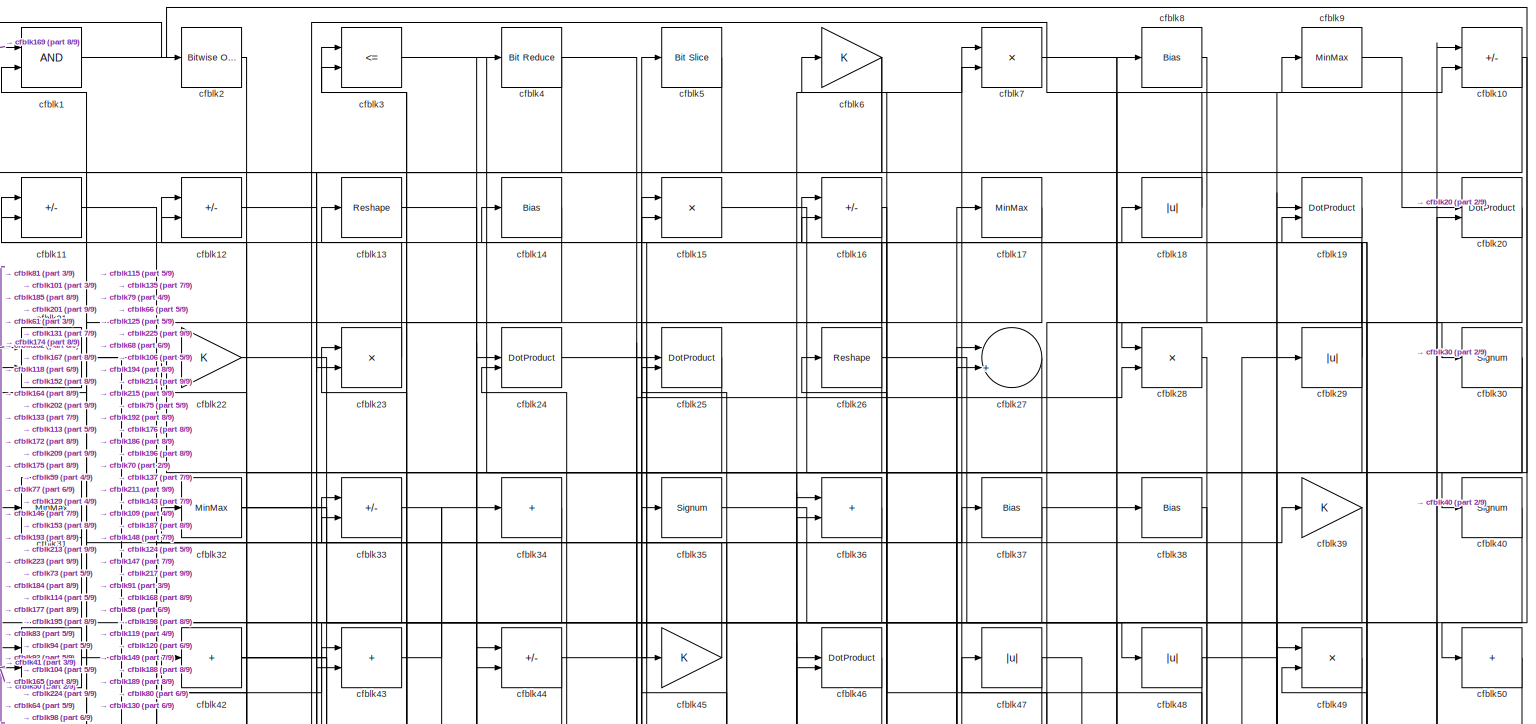
[diagram: root canvas - part 1/9, full width, top band]
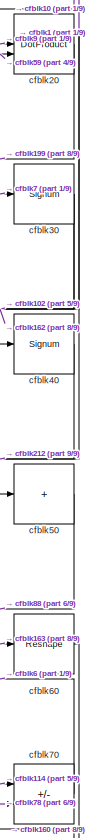
[diagram: root canvas - part 2/9, top right region]
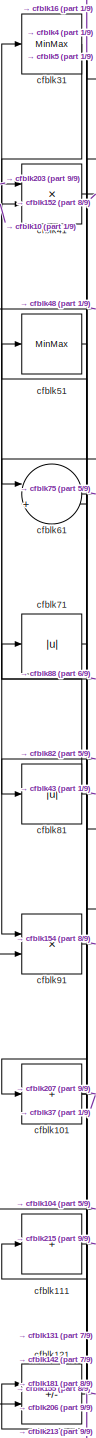
[diagram: root canvas - part 3/9, middle left region]
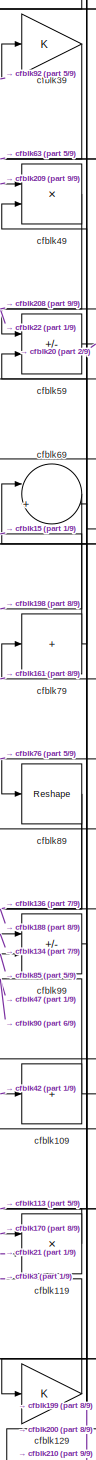
[diagram: root canvas - part 4/9, middle right region]
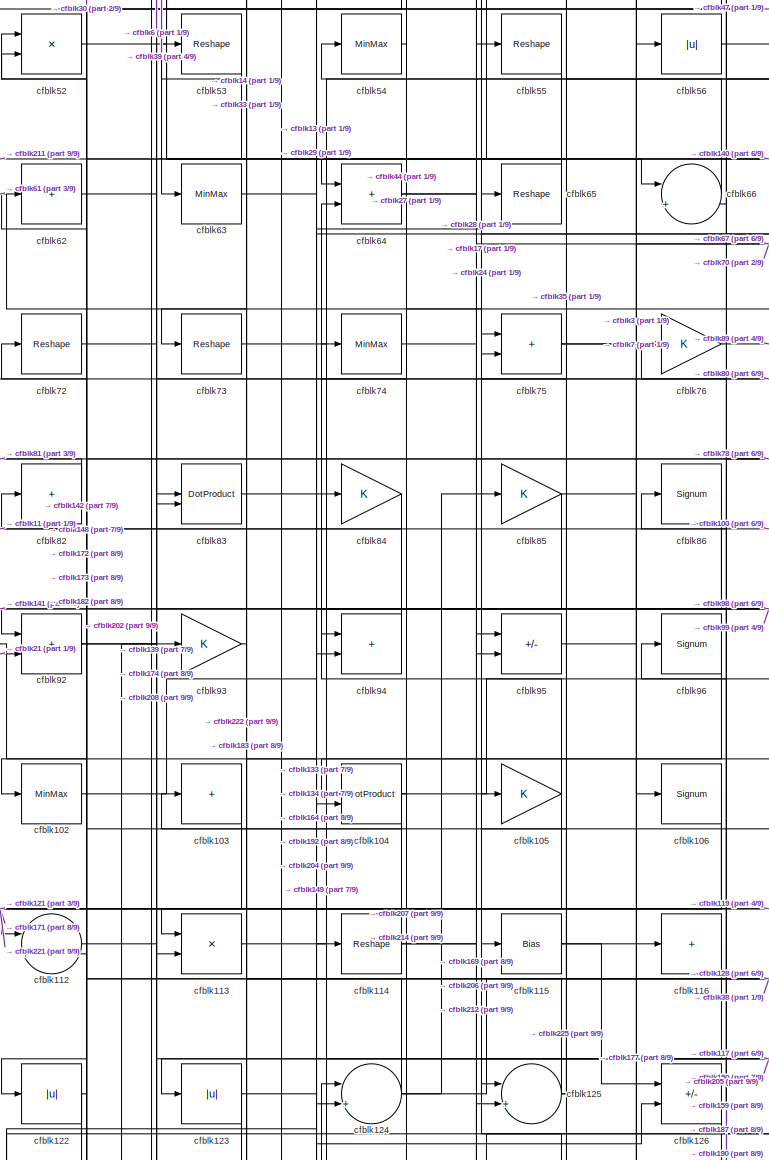
[diagram: root canvas - part 5/9, central region]
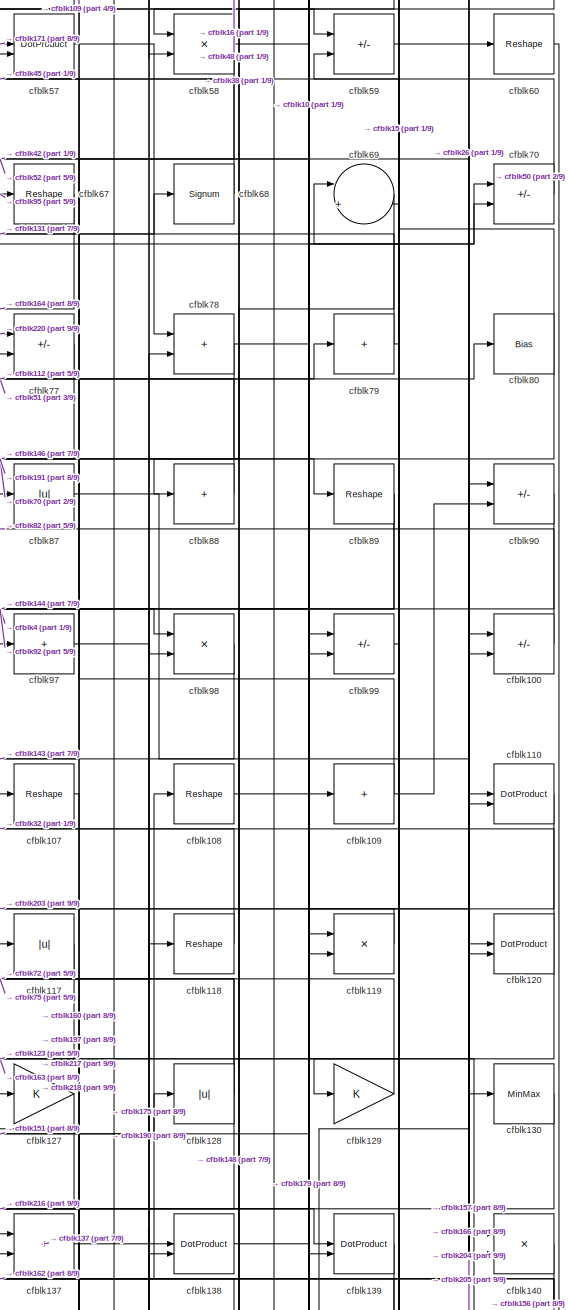
[diagram: root canvas - part 6/9, middle right region]
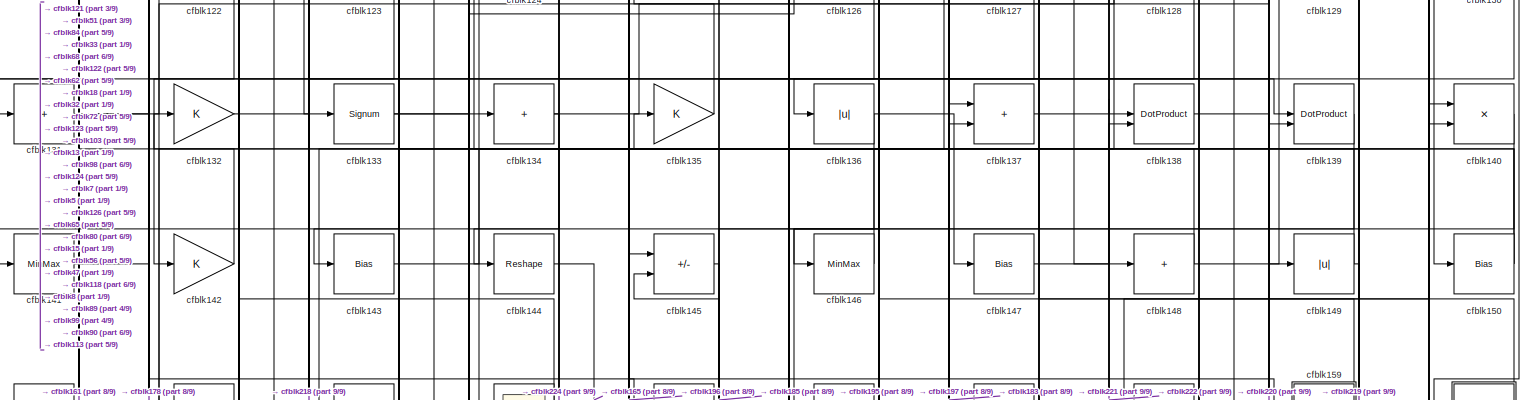
[diagram: root canvas - part 7/9, full width, middle band]
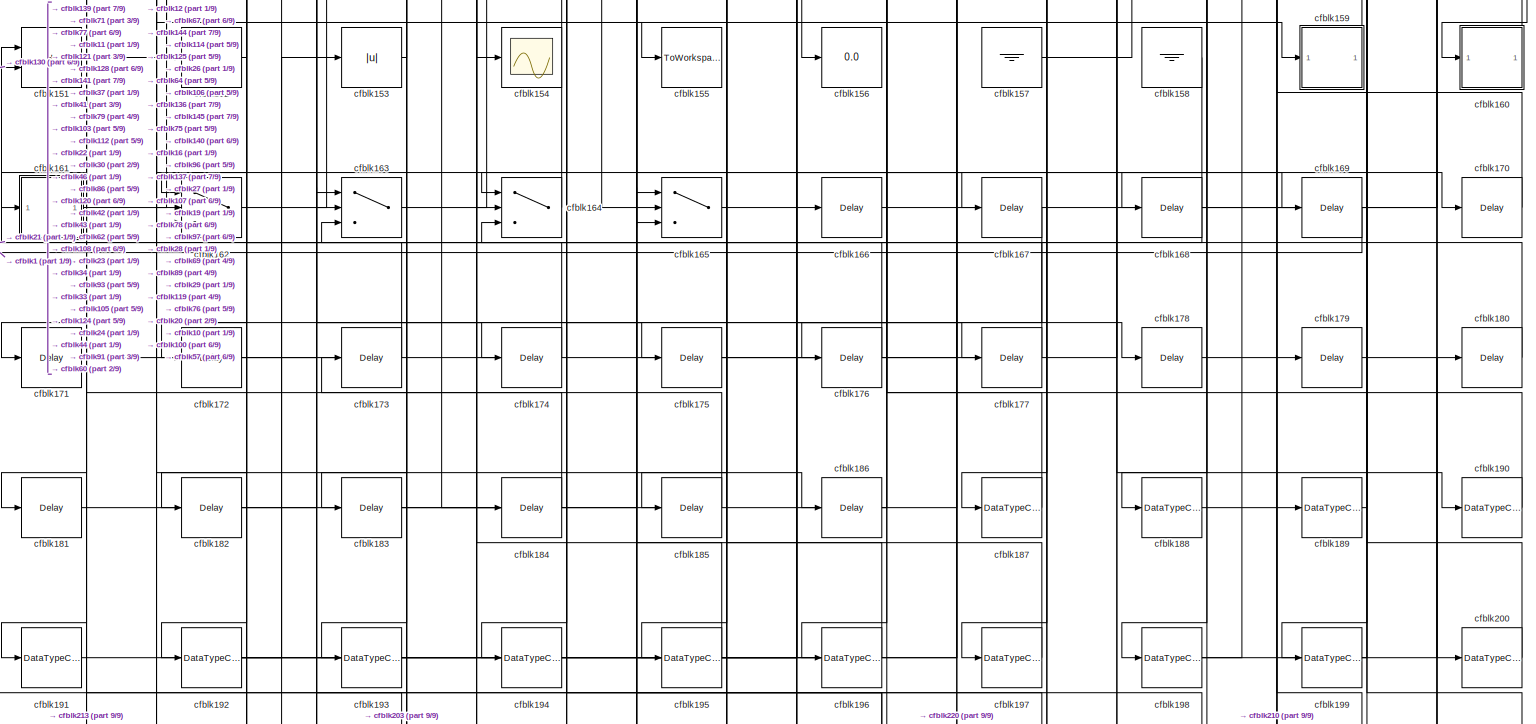
[diagram: root canvas - part 8/9, full width, bottom band]
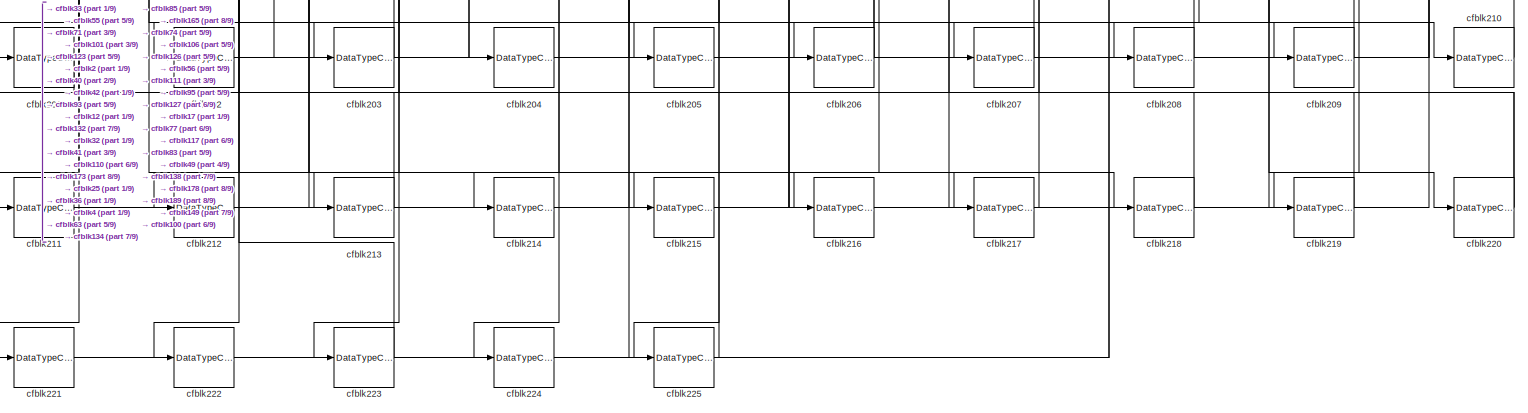
[diagram: root canvas - part 9/9, full width, bottom band]
MODEL slx_7e7585e5e360
KIND model
CONFIG AbsTol = auto
CONFIG EnableMultiTasking = off
CONFIG FixedStep = auto
CONFIG MaxStep = auto
CONFIG MinStep = auto
CONFIG RelTol = 1e-3
CONFIG SampleTimeConstraint = Unconstrained
CONFIG SolverName = VariableStepAuto
CONFIG StartTime = 0.0
CONFIG StopTime = 10.0
BLOCK [Logic] cfblk1
  AllPortsSameDT = off
  OutDataTypeStr = boolean
BLOCK [Sum] cfblk10
  IconShape = rectangular
  Inputs = +-
BLOCK [Sum] cfblk100
  IconShape = rectangular
  Inputs = +-
BLOCK [Sum] cfblk101
  IconShape = rectangular
  Inputs = +
BLOCK [MinMax] cfblk102
BLOCK [Sum] cfblk103
  IconShape = rectangular
  Inputs = +
BLOCK [DotProduct] cfblk104
  OutDataTypeStr = Inherit: Inherit via internal rule
BLOCK [Gain] cfblk105
BLOCK [Signum] cfblk106
BLOCK [Reshape] cfblk107
BLOCK [Reshape] cfblk108
BLOCK [Sum] cfblk109
  IconShape = rectangular
  Inputs = +
BLOCK [Sum] cfblk11
  IconShape = rectangular
  Inputs = +-
BLOCK [DotProduct] cfblk110
  OutDataTypeStr = Inherit: Inherit via internal rule
BLOCK [Sum] cfblk111
  IconShape = rectangular
  Inputs = +
BLOCK [Sum] cfblk112
  Inputs = |++
BLOCK [Product] cfblk113
  Inputs = */
  RndMeth = Zero
  SaturateOnIntegerOverflow = on
BLOCK [Reshape] cfblk114
BLOCK [Bias] cfblk115
  Bias = 0.0
  SaturateOnIntegerOverflow = off
BLOCK [Sum] cfblk116
  IconShape = rectangular
  Inputs = +
BLOCK [Abs] cfblk117
  SaturateOnIntegerOverflow = off
BLOCK [Reshape] cfblk118
BLOCK [Product] cfblk119
  Inputs = */
  RndMeth = Zero
  SaturateOnIntegerOverflow = on
BLOCK [Sum] cfblk12
  IconShape = rectangular
  Inputs = +-
BLOCK [DotProduct] cfblk120
  OutDataTypeStr = Inherit: Inherit via internal rule
BLOCK [Sum] cfblk121
  IconShape = rectangular
  Inputs = +-
BLOCK [Abs] cfblk122
  SaturateOnIntegerOverflow = off
BLOCK [Abs] cfblk123
  SaturateOnIntegerOverflow = off
BLOCK [Sum] cfblk124
  Inputs = |++
BLOCK [Sum] cfblk125
  Inputs = |++
BLOCK [Sum] cfblk126
  IconShape = rectangular
  Inputs = +-
BLOCK [Gain] cfblk127
BLOCK [Abs] cfblk128
  SaturateOnIntegerOverflow = off
BLOCK [Gain] cfblk129
BLOCK [Reshape] cfblk13
BLOCK [MinMax] cfblk130
BLOCK [Sum] cfblk131
  IconShape = rectangular
  Inputs = +
BLOCK [Gain] cfblk132
BLOCK [Signum] cfblk133
BLOCK [Sum] cfblk134
  IconShape = rectangular
  Inputs = +
BLOCK [Gain] cfblk135
BLOCK [Abs] cfblk136
  SaturateOnIntegerOverflow = off
BLOCK [Sum] cfblk137
  IconShape = rectangular
BLOCK [DotProduct] cfblk138
  OutDataTypeStr = Inherit: Inherit via internal rule
BLOCK [DotProduct] cfblk139
  OutDataTypeStr = Inherit: Inherit via internal rule
BLOCK [Bias] cfblk14
  Bias = 0.0
  SaturateOnIntegerOverflow = off
BLOCK [Product] cfblk140
  Inputs = */
  RndMeth = Zero
  SaturateOnIntegerOverflow = on
BLOCK [MinMax] cfblk141
BLOCK [Gain] cfblk142
BLOCK [Bias] cfblk143
  Bias = 0.0
  SaturateOnIntegerOverflow = off
BLOCK [Reshape] cfblk144
BLOCK [Sum] cfblk145
  IconShape = rectangular
  Inputs = +-
BLOCK [MinMax] cfblk146
BLOCK [Bias] cfblk147
  Bias = 0.0
  SaturateOnIntegerOverflow = off
BLOCK [Sum] cfblk148
  IconShape = rectangular
  Inputs = +
BLOCK [Abs] cfblk149
  SaturateOnIntegerOverflow = off
BLOCK [Product] cfblk15
  Inputs = */
  RndMeth = Zero
  SaturateOnIntegerOverflow = on
BLOCK [Bias] cfblk150
  Bias = 0.0
  SaturateOnIntegerOverflow = off
BLOCK [Sum] cfblk151
  IconShape = rectangular
BLOCK [Sum] cfblk152
  IconShape = rectangular
  Inputs = +
BLOCK [Abs] cfblk153
  SaturateOnIntegerOverflow = off
BLOCK [Scope] cfblk154
  Floating = off
  NumInputPorts = 1
  ScopeSpecificationString = Simulink.scopes.TimeScopeBlockCfg('CurrentConfiguration', extmgr.ConfigurationSet(extmgr.Configuration('Core','General UI',true),extmgr.Configuration('Core','Source UI',true),extmgr.Configuration('Sources','WiredSimulink',true,'DataLoggingVariableName','ScopeData2','DataLoggingSaveFormat','Array','DataLoggingLimitDataPoints',true,'DataLoggingDecimation','1'),extmgr.Configuration('Visuals','Time Do...<+868ch>
BLOCK [ToWorkspace] cfblk155
  MaxDataPoints = inf
  SampleTime = -1
  SaveFormat = Timeseries
  VariableName = simout
BLOCK [Display] cfblk156
  Decimation = 1
BLOCK [Ground] cfblk157
BLOCK [Ground] cfblk158
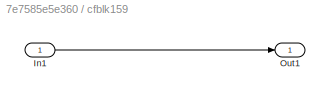
BLOCK [SubSystem] cfblk159
  LibrarySourceBlock = hdlsllib/Ports &\nSubsystems/Subsystem
BLOCK [Inport] cfblk159/In1
BLOCK [Outport] cfblk159/Out1
BLOCK [Sum] cfblk16
  IconShape = rectangular
  Inputs = +-
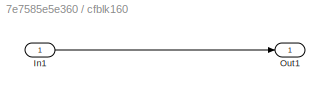
BLOCK [SubSystem] cfblk160
  LibrarySourceBlock = hdlsllib/Ports &\nSubsystems/Subsystem
BLOCK [Inport] cfblk160/In1
BLOCK [Outport] cfblk160/Out1
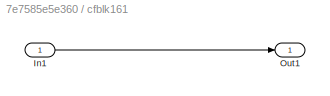
BLOCK [SubSystem] cfblk161
  LibrarySourceBlock = hdlsllib/Ports &\nSubsystems/Subsystem
BLOCK [Inport] cfblk161/In1
BLOCK [Outport] cfblk161/Out1
BLOCK [Switch] cfblk162
  InputSameDT = off
  SaturateOnIntegerOverflow = off
BLOCK [Switch] cfblk163
  InputSameDT = off
  SaturateOnIntegerOverflow = off
BLOCK [Switch] cfblk164
  InputSameDT = off
  SaturateOnIntegerOverflow = off
BLOCK [Switch] cfblk165
  InputSameDT = off
  SaturateOnIntegerOverflow = off
BLOCK [Delay] cfblk166
  InputPortMap = u0
  SampleTime = 1
BLOCK [Delay] cfblk167
  InputPortMap = u0
  SampleTime = 1
BLOCK [Delay] cfblk168
  InputPortMap = u0
  SampleTime = 1
BLOCK [Delay] cfblk169
  InputPortMap = u0
  SampleTime = 1
BLOCK [MinMax] cfblk17
BLOCK [Delay] cfblk170
  InputPortMap = u0
  SampleTime = 1
BLOCK [Delay] cfblk171
  InputPortMap = u0
  SampleTime = 1
BLOCK [Delay] cfblk172
  InputPortMap = u0
  SampleTime = 1
BLOCK [Delay] cfblk173
  InputPortMap = u0
  SampleTime = 1
BLOCK [Delay] cfblk174
  InputPortMap = u0
  SampleTime = 1
BLOCK [Delay] cfblk175
  InputPortMap = u0
  SampleTime = 1
BLOCK [Delay] cfblk176
  InputPortMap = u0
  SampleTime = 1
BLOCK [Delay] cfblk177
  InputPortMap = u0
  SampleTime = 1
BLOCK [Delay] cfblk178
  InputPortMap = u0
  SampleTime = 1
BLOCK [Delay] cfblk179
  InputPortMap = u0
  SampleTime = 1
BLOCK [Abs] cfblk18
  SaturateOnIntegerOverflow = off
BLOCK [Delay] cfblk180
  InputPortMap = u0
  SampleTime = 1
BLOCK [Delay] cfblk181
  InputPortMap = u0
  SampleTime = 1
BLOCK [Delay] cfblk182
  InputPortMap = u0
  SampleTime = 1
BLOCK [Delay] cfblk183
  InputPortMap = u0
  SampleTime = 1
BLOCK [Delay] cfblk184
  InputPortMap = u0
  SampleTime = 1
BLOCK [Delay] cfblk185
  InputPortMap = u0
  SampleTime = 1
BLOCK [Delay] cfblk186
  InputPortMap = u0
  SampleTime = 1
BLOCK [DataTypeConversion] cfblk187
  OutDataTypeStr = uint8
  RndMeth = Floor
  SaturateOnIntegerOverflow = off
BLOCK [DataTypeConversion] cfblk188
  OutDataTypeStr = uint8
  RndMeth = Floor
  SaturateOnIntegerOverflow = off
BLOCK [DataTypeConversion] cfblk189
  OutDataTypeStr = uint8
  RndMeth = Floor
  SaturateOnIntegerOverflow = off
BLOCK [DotProduct] cfblk19
  OutDataTypeStr = Inherit: Inherit via internal rule
BLOCK [DataTypeConversion] cfblk190
  OutDataTypeStr = uint8
  RndMeth = Floor
  SaturateOnIntegerOverflow = off
BLOCK [DataTypeConversion] cfblk191
  OutDataTypeStr = uint8
  RndMeth = Floor
  SaturateOnIntegerOverflow = off
BLOCK [DataTypeConversion] cfblk192
  RndMeth = Floor
  SaturateOnIntegerOverflow = off
BLOCK [DataTypeConversion] cfblk193
  OutDataTypeStr = uint8
  RndMeth = Floor
  SaturateOnIntegerOverflow = off
BLOCK [DataTypeConversion] cfblk194
  OutDataTypeStr = uint8
  RndMeth = Floor
  SaturateOnIntegerOverflow = off
BLOCK [DataTypeConversion] cfblk195
  RndMeth = Floor
  SaturateOnIntegerOverflow = off
BLOCK [DataTypeConversion] cfblk196
  OutDataTypeStr = uint8
  RndMeth = Floor
  SaturateOnIntegerOverflow = off
BLOCK [DataTypeConversion] cfblk197
  OutDataTypeStr = uint8
  RndMeth = Floor
  SaturateOnIntegerOverflow = off
BLOCK [DataTypeConversion] cfblk198
  RndMeth = Floor
  SaturateOnIntegerOverflow = off
BLOCK [DataTypeConversion] cfblk199
  OutDataTypeStr = uint8
  RndMeth = Floor
  SaturateOnIntegerOverflow = off
BLOCK [Reference] cfblk2  REF=simulink/Logic and Bit
Operations/Bitwise
Operator
  LibrarySourceBlock = hdlsllib/Logic and Bit\nOperations/Bitwise\nOperator
  SourceBlock = simulink/Logic and Bit\nOperations/Bitwise\nOperator
  SourceType = Bitwise Operator
BLOCK [DotProduct] cfblk20
  OutDataTypeStr = Inherit: Inherit via internal rule
BLOCK [DataTypeConversion] cfblk200
  OutDataTypeStr = uint8
  RndMeth = Floor
  SaturateOnIntegerOverflow = off
BLOCK [DataTypeConversion] cfblk201
  OutDataTypeStr = boolean
  RndMeth = Floor
  SaturateOnIntegerOverflow = off
BLOCK [DataTypeConversion] cfblk202
  RndMeth = Floor
  SaturateOnIntegerOverflow = off
BLOCK [DataTypeConversion] cfblk203
  RndMeth = Floor
  SaturateOnIntegerOverflow = off
BLOCK [DataTypeConversion] cfblk204
  OutDataTypeStr = uint8
  RndMeth = Floor
  SaturateOnIntegerOverflow = off
BLOCK [DataTypeConversion] cfblk205
  OutDataTypeStr = uint8
  RndMeth = Floor
  SaturateOnIntegerOverflow = off
BLOCK [DataTypeConversion] cfblk206
  RndMeth = Floor
  SaturateOnIntegerOverflow = off
BLOCK [DataTypeConversion] cfblk207
  OutDataTypeStr = uint8
  RndMeth = Floor
  SaturateOnIntegerOverflow = off
BLOCK [DataTypeConversion] cfblk208
  OutDataTypeStr = uint8
  RndMeth = Floor
  SaturateOnIntegerOverflow = off
BLOCK [DataTypeConversion] cfblk209
  OutDataTypeStr = uint8
  RndMeth = Floor
  SaturateOnIntegerOverflow = off
BLOCK [Sum] cfblk21
  IconShape = rectangular
  Inputs = +-
BLOCK [DataTypeConversion] cfblk210
  OutDataTypeStr = uint8
  RndMeth = Floor
  SaturateOnIntegerOverflow = off
BLOCK [DataTypeConversion] cfblk211
  RndMeth = Floor
  SaturateOnIntegerOverflow = off
BLOCK [DataTypeConversion] cfblk212
  OutDataTypeStr = uint8
  RndMeth = Floor
  SaturateOnIntegerOverflow = off
BLOCK [DataTypeConversion] cfblk213
  RndMeth = Floor
  SaturateOnIntegerOverflow = off
BLOCK [DataTypeConversion] cfblk214
  OutDataTypeStr = uint8
  RndMeth = Floor
  SaturateOnIntegerOverflow = off
BLOCK [DataTypeConversion] cfblk215
  OutDataTypeStr = uint8
  RndMeth = Floor
  SaturateOnIntegerOverflow = off
BLOCK [DataTypeConversion] cfblk216
  OutDataTypeStr = uint8
  RndMeth = Floor
  SaturateOnIntegerOverflow = off
BLOCK [DataTypeConversion] cfblk217
  OutDataTypeStr = uint8
  RndMeth = Floor
  SaturateOnIntegerOverflow = off
BLOCK [DataTypeConversion] cfblk218
  OutDataTypeStr = uint8
  RndMeth = Floor
  SaturateOnIntegerOverflow = off
BLOCK [DataTypeConversion] cfblk219
  OutDataTypeStr = uint8
  RndMeth = Floor
  SaturateOnIntegerOverflow = off
BLOCK [Gain] cfblk22
BLOCK [DataTypeConversion] cfblk220
  RndMeth = Floor
  SaturateOnIntegerOverflow = off
BLOCK [DataTypeConversion] cfblk221
  OutDataTypeStr = uint8
  RndMeth = Floor
  SaturateOnIntegerOverflow = off
BLOCK [DataTypeConversion] cfblk222
  OutDataTypeStr = uint8
  RndMeth = Floor
  SaturateOnIntegerOverflow = off
BLOCK [DataTypeConversion] cfblk223
  OutDataTypeStr = uint8
  RndMeth = Floor
  SaturateOnIntegerOverflow = off
BLOCK [DataTypeConversion] cfblk224
  OutDataTypeStr = uint8
  RndMeth = Floor
  SaturateOnIntegerOverflow = off
BLOCK [DataTypeConversion] cfblk225
  OutDataTypeStr = uint8
  RndMeth = Floor
  SaturateOnIntegerOverflow = off
BLOCK [Product] cfblk23
  Inputs = */
  RndMeth = Zero
  SaturateOnIntegerOverflow = on
BLOCK [DotProduct] cfblk24
  OutDataTypeStr = Inherit: Inherit via internal rule
BLOCK [DotProduct] cfblk25
  OutDataTypeStr = Inherit: Inherit via internal rule
BLOCK [Reshape] cfblk26
BLOCK [Sum] cfblk27
  Inputs = |++
BLOCK [Product] cfblk28
  Inputs = */
  RndMeth = Zero
  SaturateOnIntegerOverflow = on
BLOCK [Abs] cfblk29
  SaturateOnIntegerOverflow = off
BLOCK [RelationalOperator] cfblk3
  InputSameDT = off
  Operator = <=
  OutDataTypeStr = boolean
BLOCK [Signum] cfblk30
BLOCK [MinMax] cfblk31
BLOCK [MinMax] cfblk32
BLOCK [Sum] cfblk33
  IconShape = rectangular
  Inputs = +-
BLOCK [Sum] cfblk34
  IconShape = rectangular
  Inputs = +
BLOCK [Signum] cfblk35
BLOCK [Sum] cfblk36
  IconShape = rectangular
BLOCK [Bias] cfblk37
  Bias = 0.0
  SaturateOnIntegerOverflow = off
BLOCK [Bias] cfblk38
  Bias = 0.0
  SaturateOnIntegerOverflow = off
BLOCK [Gain] cfblk39
BLOCK [Reference] cfblk4  REF=hdlsllib/Logic and Bit
Operations/Bit Reduce
  SourceBlock = hdlsllib/Logic and Bit\nOperations/Bit Reduce
  SourceType = Bit Reduce
BLOCK [Signum] cfblk40
BLOCK [Product] cfblk41
  Inputs = */
  RndMeth = Zero
  SaturateOnIntegerOverflow = on
BLOCK [Sum] cfblk42
  IconShape = rectangular
  Inputs = +
BLOCK [Sum] cfblk43
  IconShape = rectangular
BLOCK [Sum] cfblk44
  IconShape = rectangular
  Inputs = +-
BLOCK [Gain] cfblk45
BLOCK [DotProduct] cfblk46
  OutDataTypeStr = Inherit: Inherit via internal rule
BLOCK [Abs] cfblk47
  SaturateOnIntegerOverflow = off
BLOCK [Abs] cfblk48
  SaturateOnIntegerOverflow = off
BLOCK [Product] cfblk49
  Inputs = */
  RndMeth = Zero
  SaturateOnIntegerOverflow = on
BLOCK [Reference] cfblk5  REF=hdlsllib/Logic and Bit
Operations/Bit Slice
  SourceBlock = hdlsllib/Logic and Bit\nOperations/Bit Slice
  SourceType = Bit Slice
BLOCK [Sum] cfblk50
  IconShape = rectangular
  Inputs = +
BLOCK [MinMax] cfblk51
BLOCK [Product] cfblk52
  Inputs = */
  RndMeth = Zero
  SaturateOnIntegerOverflow = on
BLOCK [Reshape] cfblk53
BLOCK [MinMax] cfblk54
BLOCK [Reshape] cfblk55
BLOCK [Abs] cfblk56
  SaturateOnIntegerOverflow = off
BLOCK [DotProduct] cfblk57
  OutDataTypeStr = Inherit: Inherit via internal rule
BLOCK [Product] cfblk58
  Inputs = */
  RndMeth = Zero
  SaturateOnIntegerOverflow = on
BLOCK [Sum] cfblk59
  IconShape = rectangular
  Inputs = +-
BLOCK [Gain] cfblk6
BLOCK [Reshape] cfblk60
BLOCK [Sum] cfblk61
  Inputs = |++
BLOCK [Sum] cfblk62
  IconShape = rectangular
  Inputs = +
BLOCK [MinMax] cfblk63
BLOCK [Sum] cfblk64
  IconShape = rectangular
BLOCK [Reshape] cfblk65
BLOCK [Sum] cfblk66
  Inputs = |++
BLOCK [Reshape] cfblk67
BLOCK [Signum] cfblk68
BLOCK [Sum] cfblk69
  Inputs = |++
BLOCK [Product] cfblk7
  Inputs = */
  RndMeth = Zero
  SaturateOnIntegerOverflow = on
BLOCK [Sum] cfblk70
  IconShape = rectangular
  Inputs = +-
BLOCK [Abs] cfblk71
  SaturateOnIntegerOverflow = off
BLOCK [Reshape] cfblk72
BLOCK [Reshape] cfblk73
BLOCK [MinMax] cfblk74
BLOCK [Sum] cfblk75
  IconShape = rectangular
BLOCK [Gain] cfblk76
BLOCK [Sum] cfblk77
  IconShape = rectangular
  Inputs = +-
BLOCK [Sum] cfblk78
  IconShape = rectangular
BLOCK [Sum] cfblk79
  IconShape = rectangular
  Inputs = +
BLOCK [Bias] cfblk8
  Bias = 0.0
  SaturateOnIntegerOverflow = off
BLOCK [Bias] cfblk80
  Bias = 0.0
  SaturateOnIntegerOverflow = off
BLOCK [Abs] cfblk81
  SaturateOnIntegerOverflow = off
BLOCK [Sum] cfblk82
  IconShape = rectangular
  Inputs = +
BLOCK [DotProduct] cfblk83
  OutDataTypeStr = Inherit: Inherit via internal rule
BLOCK [Gain] cfblk84
BLOCK [Gain] cfblk85
BLOCK [Signum] cfblk86
BLOCK [Abs] cfblk87
  SaturateOnIntegerOverflow = off
BLOCK [Sum] cfblk88
  IconShape = rectangular
  Inputs = +
BLOCK [Reshape] cfblk89
BLOCK [MinMax] cfblk9
BLOCK [Sum] cfblk90
  IconShape = rectangular
  Inputs = +-
BLOCK [Product] cfblk91
  Inputs = */
  RndMeth = Zero
  SaturateOnIntegerOverflow = on
BLOCK [Sum] cfblk92
  IconShape = rectangular
BLOCK [Gain] cfblk93
BLOCK [Sum] cfblk94
  IconShape = rectangular
BLOCK [Sum] cfblk95
  IconShape = rectangular
  Inputs = +-
BLOCK [Signum] cfblk96
BLOCK [Sum] cfblk97
  IconShape = rectangular
  Inputs = +
BLOCK [Product] cfblk98
  Inputs = */
  RndMeth = Zero
  SaturateOnIntegerOverflow = on
BLOCK [Sum] cfblk99
  IconShape = rectangular
  Inputs = +-
LINE cfblk100:1 -> cfblk82:1
NET cfblk101:1 -> cfblk207:1, cfblk37:1
LINE cfblk102:1 -> cfblk84:1
LINE cfblk103:1 -> cfblk182:1
NET cfblk104:1 -> cfblk121:2, cfblk24:2, cfblk27:2
NET cfblk105:1 -> cfblk164:2, cfblk64:2
NET cfblk106:1 -> cfblk171:1, cfblk221:1, cfblk225:1
LINE cfblk107:1 -> cfblk197:1
LINE cfblk108:1 -> cfblk179:1
NET cfblk109:1 -> cfblk47:1, cfblk90:2
NET cfblk10:1 -> cfblk41:2, cfblk50:1
LINE cfblk110:1 -> cfblk203:1
LINE cfblk111:1 -> cfblk215:1
LINE cfblk112:1 -> cfblk80:1
LINE cfblk113:1 -> cfblk150:1
NET cfblk114:1 -> cfblk159:1, cfblk33:1, cfblk70:1
NET cfblk115:1 -> cfblk116:1, cfblk126:1
LINE cfblk116:1 -> cfblk125:1
LINE cfblk117:1 -> cfblk123:1
LINE cfblk118:1 -> cfblk32:1
LINE cfblk119:1 -> cfblk113:1
LINE cfblk11:1 -> cfblk167:1
NET cfblk120:1 -> cfblk163:2, cfblk87:1
LINE cfblk121:1 -> cfblk155:1
NET cfblk122:1 -> cfblk142:1, cfblk52:2
NET cfblk123:1 -> cfblk134:1, cfblk222:1
NET cfblk124:1 -> cfblk38:1, cfblk53:1, cfblk85:1
NET cfblk125:1 -> cfblk105:1, cfblk35:1, cfblk52:1
LINE cfblk126:1 -> cfblk205:1
LINE cfblk127:1 -> cfblk216:1
NET cfblk128:1 -> cfblk162:2, cfblk72:1, cfblk75:2
LINE cfblk129:1 -> cfblk3:1
LINE cfblk12:1 -> cfblk209:1
LINE cfblk130:1 -> cfblk151:2
NET cfblk131:1 -> cfblk33:2, cfblk68:1
LINE cfblk132:1 -> cfblk218:1
NET cfblk133:1 -> cfblk126:2, cfblk65:1
NET cfblk134:1 -> cfblk224:1, cfblk99:1
LINE cfblk135:1 -> cfblk5:1
NET cfblk136:1 -> cfblk147:1, cfblk185:1
LINE cfblk137:1 -> cfblk118:1
LINE cfblk138:1 -> cfblk220:1
LINE cfblk139:1 -> cfblk161:1
LINE cfblk13:1 -> cfblk114:1
LINE cfblk140:1 -> cfblk156:1
LINE cfblk141:1 -> cfblk178:1
LINE cfblk142:1 -> cfblk121:1
LINE cfblk143:1 -> cfblk7:1
LINE cfblk144:1 -> cfblk165:2
LINE cfblk145:1 -> cfblk195:1
LINE cfblk146:1 -> cfblk13:1
LINE cfblk147:1 -> cfblk8:1
NET cfblk148:1 -> cfblk62:1, cfblk90:1
NET cfblk149:1 -> cfblk124:1, cfblk219:1
LINE cfblk14:1 -> cfblk73:1
NET cfblk150:1 -> cfblk103:1, cfblk135:1
NET cfblk151:1 -> cfblk128:1, cfblk186:1
LINE cfblk152:1 -> cfblk22:1
LINE cfblk153:1 -> cfblk23:1
LINE cfblk157:1 -> cfblk120:1
LINE cfblk158:1 -> cfblk151:1
LINE cfblk159/In1:1 -> cfblk159/Out1:1
LINE cfblk159:1 -> cfblk76:1
LINE cfblk15:1 -> cfblk137:1
LINE cfblk160/In1:1 -> cfblk160/Out1:1
LINE cfblk160:1 -> cfblk57:2
LINE cfblk161/In1:1 -> cfblk161/Out1:1
LINE cfblk161:1 -> cfblk79:1
LINE cfblk162:1 -> cfblk108:1
LINE cfblk163:1 -> cfblk60:1
LINE cfblk164:1 -> cfblk12:1
LINE cfblk165:1 -> cfblk170:1
LINE cfblk166:1 -> cfblk100:2
LINE cfblk167:1 -> cfblk194:1
LINE cfblk168:1 -> cfblk10:1
LINE cfblk169:1 -> cfblk1:1
NET cfblk16:1 -> cfblk176:1, cfblk61:2
LINE cfblk170:1 -> cfblk119:1
LINE cfblk171:1 -> cfblk57:1
LINE cfblk172:1 -> cfblk43:2
LINE cfblk173:1 -> cfblk112:2
LINE cfblk174:1 -> cfblk21:1
LINE cfblk175:1 -> cfblk78:2
LINE cfblk176:1 -> cfblk12:2
LINE cfblk177:1 -> cfblk44:1
LINE cfblk178:1 -> cfblk210:1
LINE cfblk179:1 -> cfblk200:1
LINE cfblk17:1 -> cfblk115:1
LINE cfblk180:1 -> cfblk164:3
LINE cfblk181:1 -> cfblk163:1
LINE cfblk182:1 -> cfblk125:2
LINE cfblk183:1 -> cfblk137:2
LINE cfblk184:1 -> cfblk163:3
LINE cfblk185:1 -> cfblk1:2
LINE cfblk186:1 -> cfblk26:1
LINE cfblk187:1 -> cfblk96:1
LINE cfblk188:1 -> cfblk19:1
LINE cfblk189:1 -> cfblk19:2
LINE cfblk18:1 -> cfblk133:1
LINE cfblk190:1 -> cfblk86:1
LINE cfblk191:1 -> cfblk97:1
NET cfblk192:1 -> cfblk124:2, cfblk153:1, cfblk27:1
LINE cfblk193:1 -> cfblk46:1
LINE cfblk194:1 -> cfblk46:2
NET cfblk195:1 -> cfblk166:1, cfblk24:1
LINE cfblk196:1 -> cfblk145:1
LINE cfblk197:1 -> cfblk145:2
NET cfblk198:1 -> cfblk180:1, cfblk29:1
LINE cfblk199:1 -> cfblk69:1
LINE cfblk19:1 -> cfblk187:1
LINE cfblk1:1 -> cfblk40:1
LINE cfblk200:1 -> cfblk69:2
LINE cfblk201:1 -> cfblk2:1
NET cfblk202:1 -> cfblk4:1, cfblk93:1
NET cfblk203:1 -> cfblk165:1, cfblk41:1
LINE cfblk204:1 -> cfblk110:1
LINE cfblk205:1 -> cfblk110:2
NET cfblk206:1 -> cfblk111:1, cfblk95:1
LINE cfblk207:1 -> cfblk74:1
LINE cfblk208:1 -> cfblk83:1
LINE cfblk209:1 -> cfblk49:1
LINE cfblk20:1 -> cfblk199:1
LINE cfblk210:1 -> cfblk49:2
NET cfblk211:1 -> cfblk17:1, cfblk56:1, cfblk83:2
LINE cfblk212:1 -> cfblk55:1
NET cfblk213:1 -> cfblk189:1, cfblk71:1
LINE cfblk214:1 -> cfblk36:1
LINE cfblk215:1 -> cfblk36:2
LINE cfblk216:1 -> cfblk100:1
LINE cfblk217:1 -> cfblk127:1
LINE cfblk218:1 -> cfblk117:1
LINE cfblk219:1 -> cfblk132:1
NET cfblk21:1 -> cfblk119:2, cfblk92:2
NET cfblk220:1 -> cfblk173:1, cfblk77:1
LINE cfblk221:1 -> cfblk138:1
LINE cfblk222:1 -> cfblk138:2
LINE cfblk223:1 -> cfblk42:1
LINE cfblk224:1 -> cfblk25:1
LINE cfblk225:1 -> cfblk25:2
LINE cfblk22:1 -> cfblk59:1
LINE cfblk23:1 -> cfblk11:1
LINE cfblk24:1 -> cfblk66:1
LINE cfblk25:1 -> cfblk223:1
NET cfblk26:1 -> cfblk130:1, cfblk14:1, cfblk165:3
LINE cfblk27:1 -> cfblk196:1
LINE cfblk28:1 -> cfblk168:1
NET cfblk29:1 -> cfblk16:1, cfblk3:2, cfblk94:2
LINE cfblk2:1 -> cfblk202:1
NET cfblk30:1 -> cfblk102:1, cfblk162:1
LINE cfblk31:1 -> cfblk91:1
NET cfblk32:1 -> cfblk149:1, cfblk217:1, cfblk58:2
NET cfblk33:1 -> cfblk184:1, cfblk201:1
LINE cfblk34:1 -> cfblk193:1
LINE cfblk35:1 -> cfblk48:1
LINE cfblk36:1 -> cfblk213:1
NET cfblk37:1 -> cfblk162:3, cfblk9:1
LINE cfblk38:1 -> cfblk58:1
LINE cfblk39:1 -> cfblk63:1
LINE cfblk3:1 -> cfblk106:1
LINE cfblk40:1 -> cfblk212:1
LINE cfblk41:1 -> cfblk152:1
NET cfblk42:1 -> cfblk109:1, cfblk175:1, cfblk77:2
LINE cfblk43:1 -> cfblk34:1
NET cfblk44:1 -> cfblk18:1, cfblk92:1
LINE cfblk45:1 -> cfblk21:2
LINE cfblk46:1 -> cfblk192:1
NET cfblk47:1 -> cfblk148:1, cfblk66:2
NET cfblk48:1 -> cfblk120:2, cfblk91:2
LINE cfblk49:1 -> cfblk208:1
NET cfblk4:1 -> cfblk61:1, cfblk98:2
LINE cfblk50:1 -> cfblk88:1
LINE cfblk51:1 -> cfblk131:1
LINE cfblk52:1 -> cfblk140:2
LINE cfblk53:1 -> cfblk122:1
LINE cfblk54:1 -> cfblk94:1
LINE cfblk55:1 -> cfblk211:1
LINE cfblk56:1 -> cfblk139:2
LINE cfblk57:1 -> cfblk78:1
NET cfblk58:1 -> cfblk107:1, cfblk10:2, cfblk16:2
LINE cfblk59:1 -> cfblk20:2
LINE cfblk5:1 -> cfblk101:1
LINE cfblk60:1 -> cfblk160:1
LINE cfblk61:1 -> cfblk75:1
LINE cfblk62:1 -> cfblk174:1
LINE cfblk63:1 -> cfblk204:1
NET cfblk64:1 -> cfblk169:1, cfblk28:2
LINE cfblk65:1 -> cfblk64:1
LINE cfblk66:1 -> cfblk54:1
LINE cfblk67:1 -> cfblk164:1
LINE cfblk68:1 -> cfblk45:1
LINE cfblk69:1 -> cfblk198:1
NET cfblk6:1 -> cfblk113:2, cfblk23:2
LINE cfblk70:1 -> cfblk6:1
LINE cfblk71:1 -> cfblk181:1
LINE cfblk72:1 -> cfblk139:1
LINE cfblk73:1 -> cfblk95:2
LINE cfblk74:1 -> cfblk206:1
NET cfblk75:1 -> cfblk177:1, cfblk7:2
LINE cfblk76:1 -> cfblk89:1
LINE cfblk77:1 -> cfblk191:1
NET cfblk78:1 -> cfblk112:1, cfblk70:2
NET cfblk79:1 -> cfblk15:1, cfblk59:2
LINE cfblk7:1 -> cfblk30:1
NET cfblk80:1 -> cfblk146:1, cfblk15:2
NET cfblk81:1 -> cfblk31:1, cfblk43:1
LINE cfblk82:1 -> cfblk81:1
LINE cfblk83:1 -> cfblk44:2
LINE cfblk84:1 -> cfblk141:1
NET cfblk85:1 -> cfblk214:1, cfblk99:2
NET cfblk86:1 -> cfblk104:2, cfblk172:1
LINE cfblk87:1 -> cfblk140:1
LINE cfblk88:1 -> cfblk51:1
NET cfblk89:1 -> cfblk136:1, cfblk188:1
LINE cfblk8:1 -> cfblk28:1
LINE cfblk90:1 -> cfblk144:1
LINE cfblk91:1 -> cfblk154:1
NET cfblk92:1 -> cfblk39:1, cfblk98:1
LINE cfblk93:1 -> cfblk183:1
LINE cfblk94:1 -> cfblk11:2
LINE cfblk95:1 -> cfblk67:1
LINE cfblk96:1 -> cfblk104:1
LINE cfblk97:1 -> cfblk190:1
LINE cfblk98:1 -> cfblk143:1
LINE cfblk99:1 -> cfblk129:1
LINE cfblk9:1 -> cfblk20:1
note: NET lines group one-source signal fan-out (src -> all destinations, sorted); 1:1 wires keep LINE
